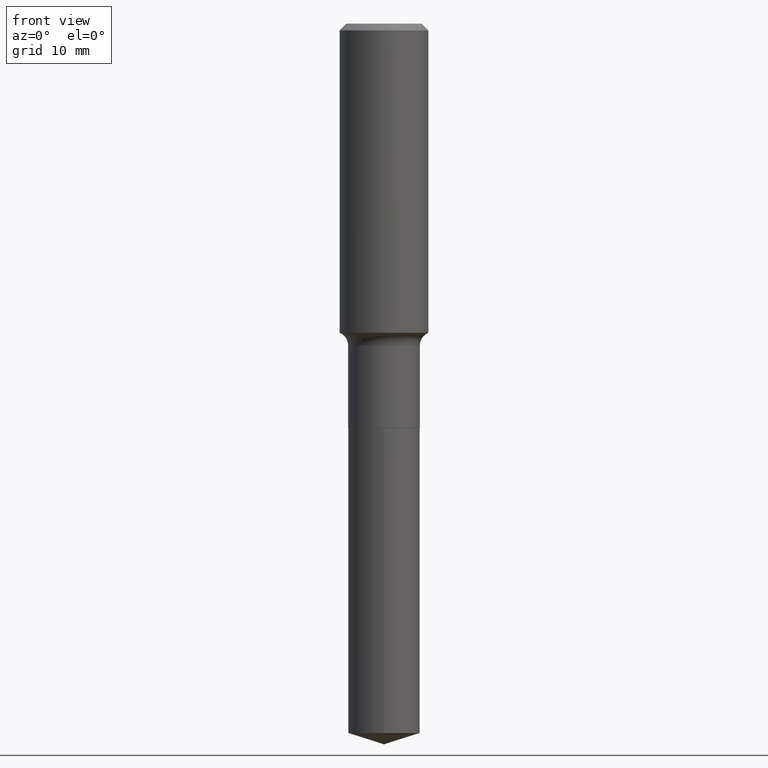
[diagram: clean part render]
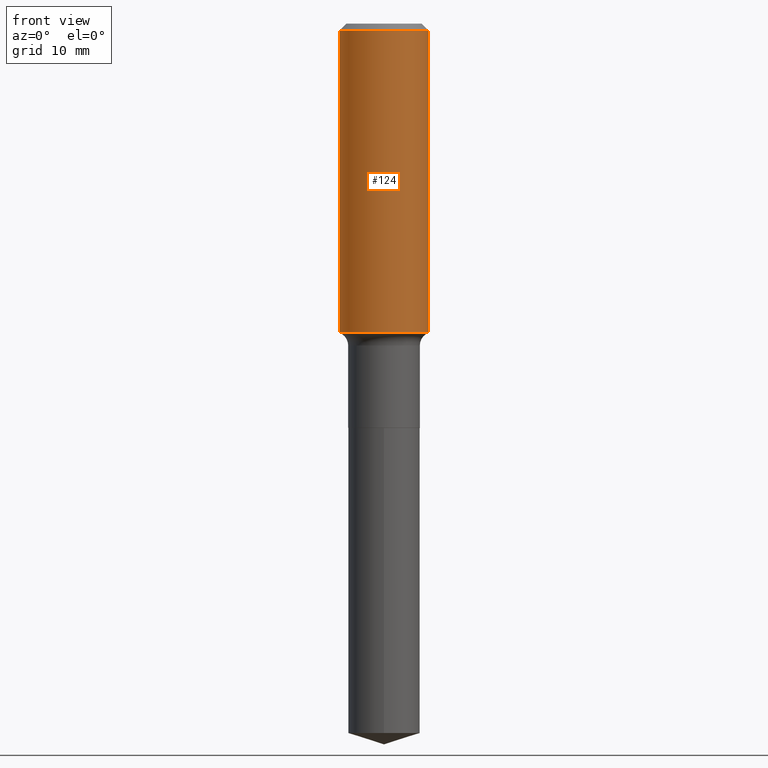
[diagram: same view with one face highlighted and labeled with its STEP entity id]
A machine part, front view. The second image highlights one B-rep face of the part: STEP entity #124.
In plain terms, the highlighted cylindrical surface (partial cylindrical patch) has radius 6.35 mm, axis along (-0, 0, 1).
Its self-contained STEP definition (entity closure, byte-faithful):
#4 = CARTESIAN_POINT ( 'NONE',  ( 4.260984847896982161E-29, -6.083557084800297028E-15, -1.742399999999999949 ) ) ;
#35 = CYLINDRICAL_SURFACE ( 'NONE', #214, 0.2500000000000000555 ) ;
#37 = CARTESIAN_POINT ( 'NONE',  ( 0.2500000000000000555, -1.745740669421567269E-15, 1.219044193948984228E-29 ) ) ;
#48 = CARTESIAN_POINT ( 'NONE',  ( 9.170508023194324245E-31, -1.309305502066188567E-16, -0.03750000000000025535 ) ) ;
#69 = VERTEX_POINT ( 'NONE', #383 ) ;
#72 = FACE_OUTER_BOUND ( 'NONE', #435, .T. ) ;
#91 = ORIENTED_EDGE ( 'NONE', *, *, #236, .F. ) ;
#105 = DIRECTION ( 'NONE',  ( -2.445468806185136597E-29, 3.491481338843145583E-15, 1.000000000000000000 ) ) ;
#115 = VERTEX_POINT ( 'NONE', #146 ) ;
#124 = ADVANCED_FACE ( 'NONE', ( #72 ), #35, .T. ) ;
#146 = CARTESIAN_POINT ( 'NONE',  ( 0.2500000000000002220, -7.829297754221866861E-15, -1.742399999999999949 ) ) ;
#147 = VERTEX_POINT ( 'NONE', #194 ) ;
#164 = AXIS2_PLACEMENT_3D ( 'NONE', #48, #426, #321 ) ;
#170 = LINE ( 'NONE', #492, #464 ) ;
#182 = EDGE_CURVE ( 'NONE', #147, #115, #486, .T. ) ;
#185 = DIRECTION ( 'NONE',  ( -2.445468806185136877E-29, 3.491481338843145188E-15, 1.000000000000000000 ) ) ;
#189 = DIRECTION ( 'NONE',  ( -2.445468806185136597E-29, 3.491481338843145583E-15, 1.000000000000000000 ) ) ;
#194 = CARTESIAN_POINT ( 'NONE',  ( -0.2500000000000002220, -4.307200245400044985E-15, -1.742399999999999949 ) ) ;
#205 = VECTOR ( 'NONE', #185, 39.37007874015748143 ) ;
#214 = AXIS2_PLACEMENT_3D ( 'NONE', #418, #189, #234 ) ;
#220 = ORIENTED_EDGE ( 'NONE', *, *, #182, .T. ) ;
#234 = DIRECTION ( 'NONE',  ( 1.000000000000000000, -6.982962677686267499E-15, 4.876176775795935793E-29 ) ) ;
#236 = EDGE_CURVE ( 'NONE', #69, #482, #449, .T. ) ;
#256 = ORIENTED_EDGE ( 'NONE', *, *, #414, .F. ) ;
#257 = DIRECTION ( 'NONE',  ( -2.445468806185136877E-29, 3.491481338843145188E-15, 1.000000000000000000 ) ) ;
#269 = DIRECTION ( 'NONE',  ( 1.000000000000000000, -6.982962677686265922E-15, 0.000000000000000000 ) ) ;
#295 = ORIENTED_EDGE ( 'NONE', *, *, #454, .T. ) ;
#321 = DIRECTION ( 'NONE',  ( 1.000000000000000000, -6.982962677686266711E-15, 0.000000000000000000 ) ) ;
#383 = CARTESIAN_POINT ( 'NONE',  ( -0.2500000000000000000, -1.330886978103206602E-15, -0.03750000000000025535 ) ) ;
#405 = LINE ( 'NONE', #37, #205 ) ;
#414 = EDGE_CURVE ( 'NONE', #147, #69, #170, .T. ) ;
#418 = CARTESIAN_POINT ( 'NONE',  ( 0.000000000000000000, 0.000000000000000000, 0.000000000000000000 ) ) ;
#426 = DIRECTION ( 'NONE',  ( -2.445468806185136597E-29, 3.491481338843145583E-15, 1.000000000000000000 ) ) ;
#427 = CARTESIAN_POINT ( 'NONE',  ( 0.2500000000000000000, -1.876671219628185362E-15, -0.03750000000000025535 ) ) ;
#435 = EDGE_LOOP ( 'NONE', ( #256, #220, #295, #91 ) ) ;
#448 = AXIS2_PLACEMENT_3D ( 'NONE', #4, #105, #269 ) ;
#449 = CIRCLE ( 'NONE', #164, 0.2500000000000000000 ) ;
#454 = EDGE_CURVE ( 'NONE', #115, #482, #405, .T. ) ;
#464 = VECTOR ( 'NONE', #257, 39.37007874015748143 ) ;
#482 = VERTEX_POINT ( 'NONE', #427 ) ;
#486 = CIRCLE ( 'NONE', #448, 0.2500000000000001665 ) ;
#492 = CARTESIAN_POINT ( 'NONE',  ( -0.2500000000000000555, 1.776356839400250859E-15, -1.229733772563726866E-29 ) ) ;